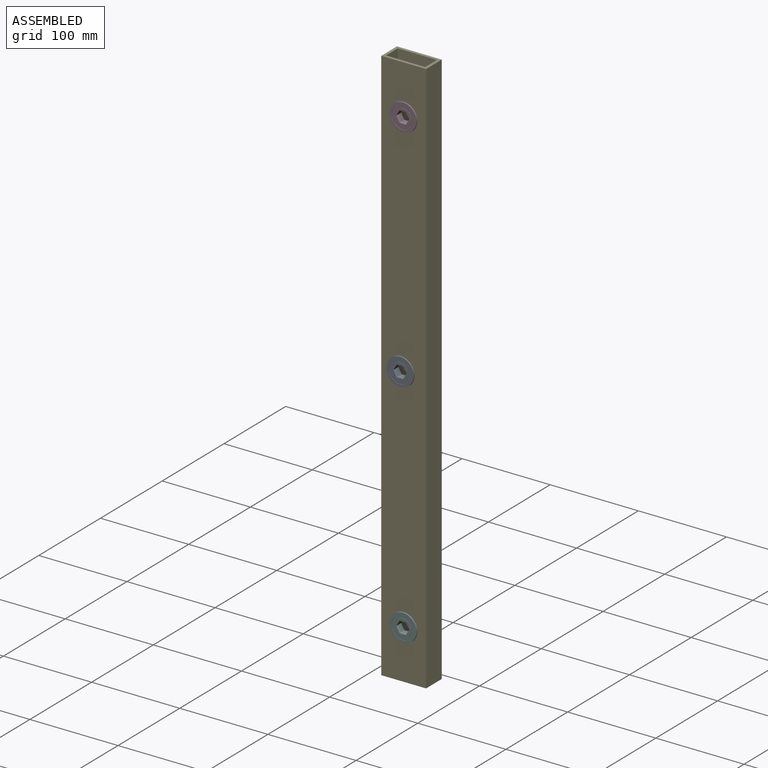
[diagram: assembled view]
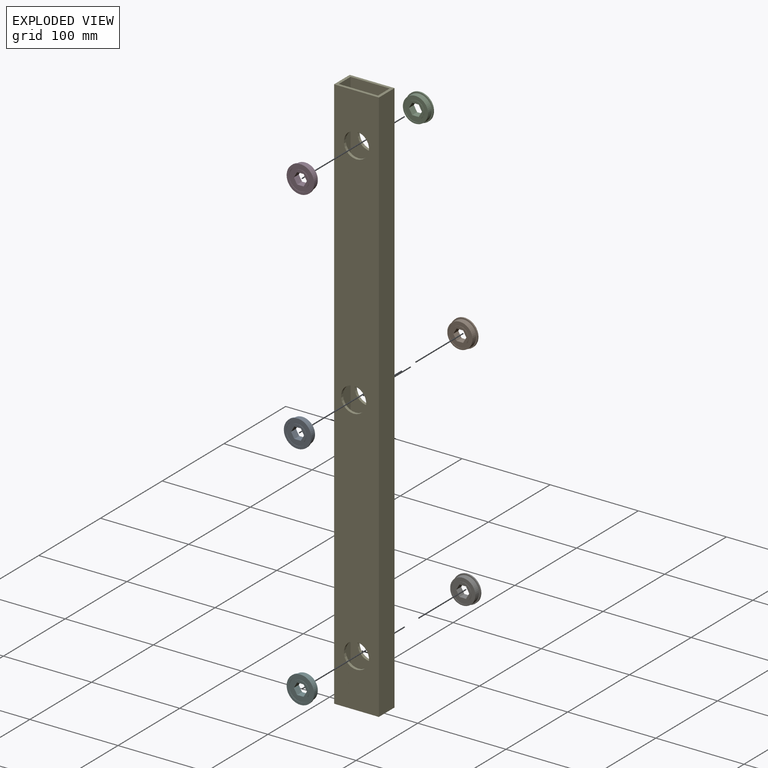
[diagram: exploded view]
GUIDED TOUR — MATED ASSEMBLY (Onshape document a4a15778484e21031797e188, AutoMate assembly a4a15778484e21031797e188_22e2bdbfeca04571f7c9a819_34fcf6a43a0e6a95f6afc652_default)

This assembly has 7 components, labeled P0..P6 below (a component is one placed occurrence of a part; the same part can appear more than once), held together by 12 mates. A mate is a constraint between two components; its type names the relative motion it leaves free:
  CYLINDRICAL — leaves both rotation about and translation along the listed axis free,
  PLANAR — leaves sliding in the plane through the listed point (normal = the listed direction) and rotation about that normal free.
Axis/direction vectors are unit vectors and 'through' points are millimeter coordinates, both in the assembly's world frame.

MATES
  1. CYLINDRICAL "Cylindrical 2": P6 <-> P4, axis (0.000, 1.000, 0.000) through (-51.10, -27.88, 42.93) mm
  2. PLANAR "Planar 4": P1 <-> P4, direction (0.000, -1.000, 0.000) through (-54.28, -24.46, 304.56) mm
  3. CYLINDRICAL "Cylindrical 5": P2 <-> P4, axis (0.000, -1.000, 0.000) through (-51.10, -30.81, 566.19) mm
  4. PLANAR "Planar 3": P1 <-> P4, direction (0.000, -1.000, 0.000) through (-54.28, -30.81, 304.56) mm
  5. PLANAR "Planar 8": P2 <-> P4, direction (0.000, -1.000, 0.000) through (-51.10, -24.46, 566.19) mm
  6. PLANAR "Planar 1": P3 <-> P4, direction (0.000, 1.000, 0.000) through (-51.10, -49.86, 566.19) mm
  7. CYLINDRICAL "Cylindrical 3": P0 <-> P4, axis (0.000, -1.000, 0.000) through (-54.28, -46.31, 304.56) mm
  8. PLANAR "Planar 7": P5 <-> P4, direction (0.000, 1.000, 0.000) through (-51.10, -49.86, 42.93) mm
  9. PLANAR "Planar 5": P0 <-> P4, direction (0.000, 1.000, 0.000) through (-54.28, -49.86, 304.56) mm
  10. PLANAR "Planar 2": P6 <-> P4, direction (0.000, 1.000, 0.000) through (-51.10, -24.46, 42.93) mm
  11. CYLINDRICAL "Cylindrical 4": P5 <-> P4, axis (0.000, -1.000, 0.000) through (-51.10, -43.51, 42.93) mm
  12. CYLINDRICAL "Cylindrical 1": P3 <-> P4, axis (0.000, -1.000, 0.000) through (-51.10, -46.31, 566.19) mm

ASSEMBLY ORDER
  1. P2 — the base component [order verified]
  2. P1 [order verified]
  3. P4 [order verified]
  4. P0 [order verified]
  5. P5 [order verified]
  6. P3 [order verified]
  7. P6 [order verified]
(P0, P3, P4, P5, P6 verified with a relaxed clearance tolerance: the source model stores slight part interference there.)
Order-tag legend:
  [order verified] — this step's position reverses a verified removal order: the component was checked to insert without passing through the ones already placed.

Of the 7 components, 1 carries the full construction recipe — the FeatureScript program that regenerates the part's solid from scratch; the rest are supplied as boundary geometry only.
Each toured component is shown spotlighted twice — in the assembled view, then in the exploded view, where a leader line traces a displaced component back to its assembled socket (saturated green if recipe-attached, orange if geometry-only; every other component desaturated gray) — followed by its recipe or geometry summary and the mates that hold it.
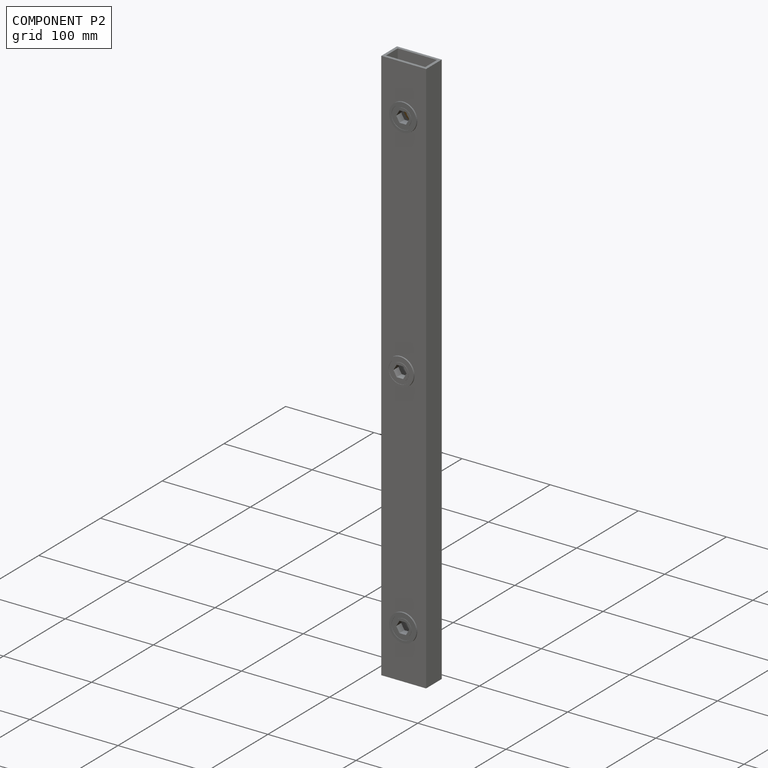
[diagram: component P2 — assembled]
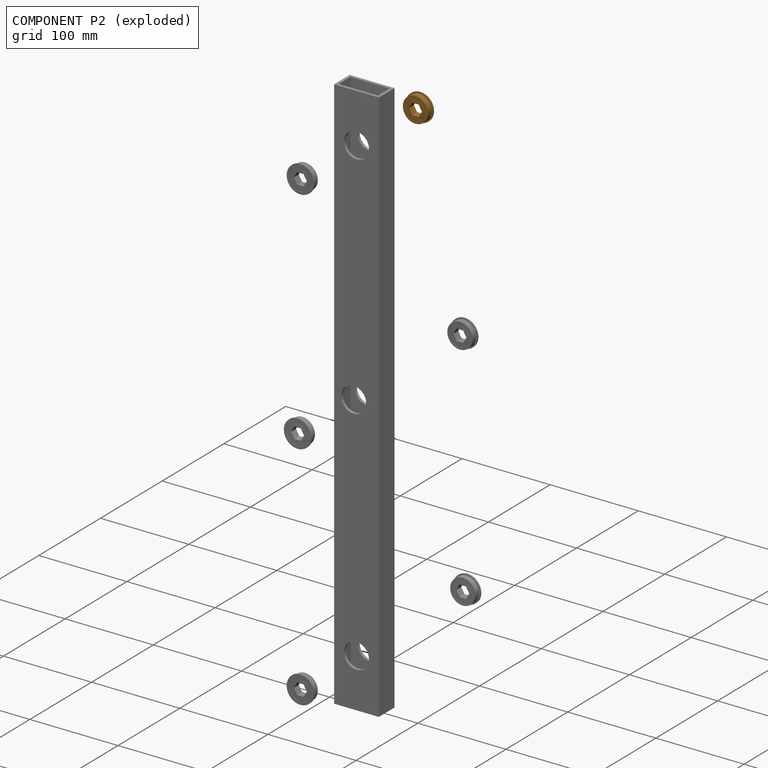
[diagram: component P2 — exploded]
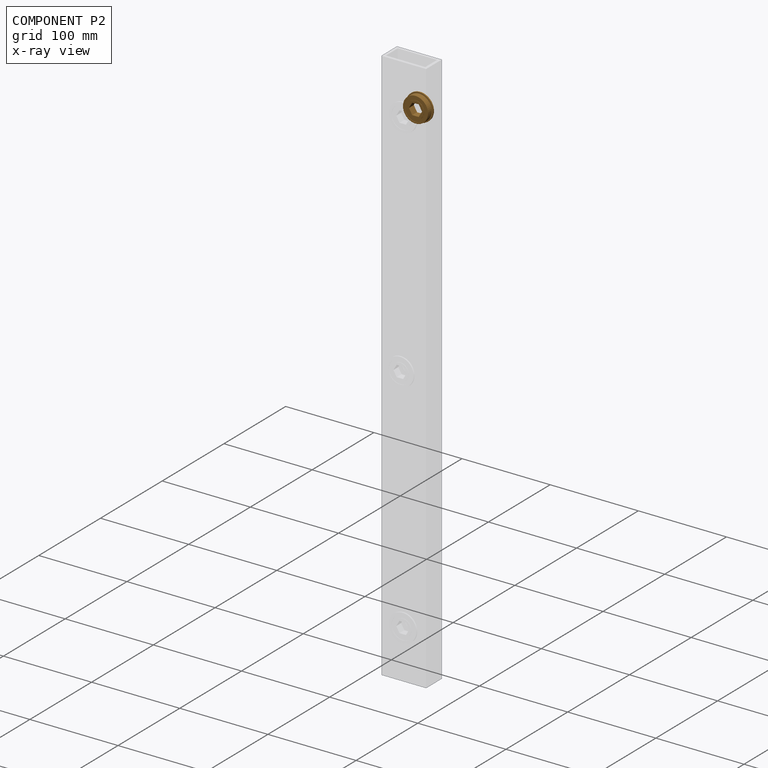
[diagram: component P2 — x-ray view]
COMPONENT P2 — geometry summary (no construction recipe available for this part):
  bounding box: 31.1 x 31.1 x 7.9 mm
  B-rep topology: 1 solid, 21 faces, 80 edges
  volume: 3986 mm^3 (52% of its bounding box)
  symmetry: 6-fold rotationally symmetric about the y axis; mirror-symmetric across its x mid-plane, z mid-plane
Held by: CYLINDRICAL mate "Cylindrical 5" to P4; PLANAR mate "Planar 8" to P4.
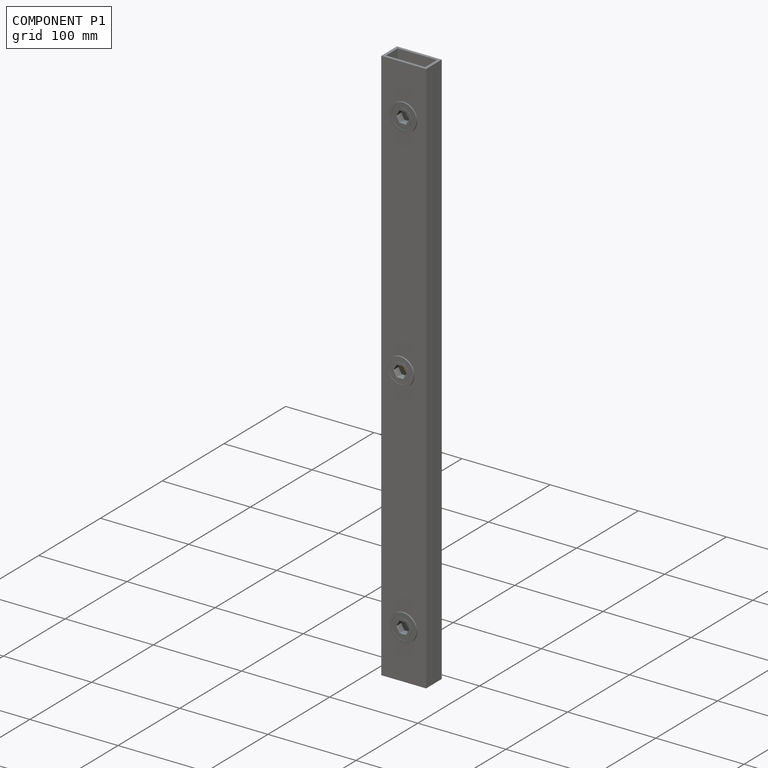
[diagram: component P1 — assembled]
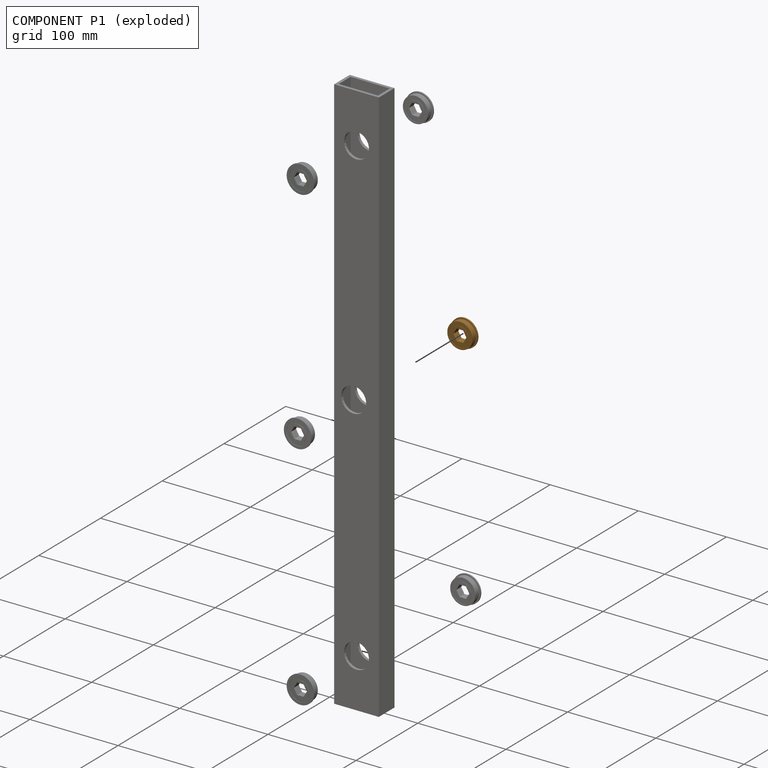
[diagram: component P1 — exploded]
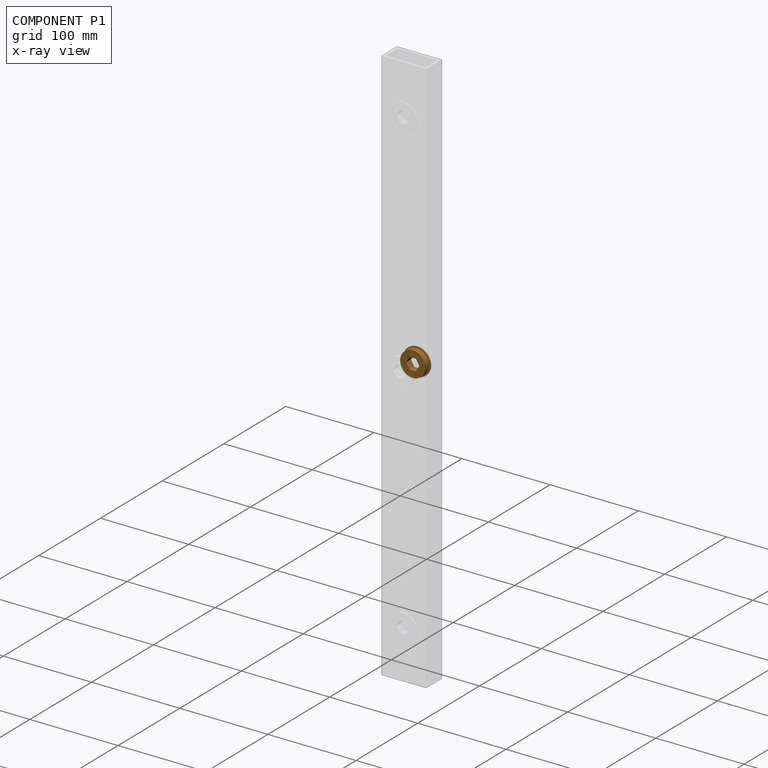
[diagram: component P1 — x-ray view]
COMPONENT P1 — geometry summary (no construction recipe available for this part):
  bounding box: 31.1 x 31.1 x 7.9 mm
  B-rep topology: 1 solid, 21 faces, 80 edges
  volume: 3986 mm^3 (52% of its bounding box)
  symmetry: 6-fold rotationally symmetric about the y axis; mirror-symmetric across its x mid-plane, z mid-plane
Held by: PLANAR mate "Planar 4" to P4; PLANAR mate "Planar 3" to P4.
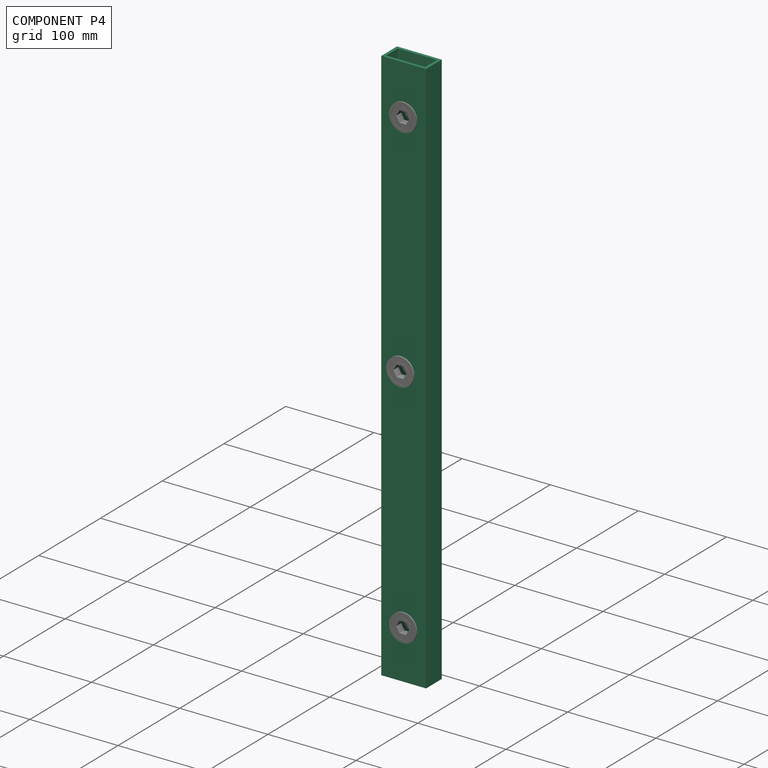
[diagram: component P4 — assembled]
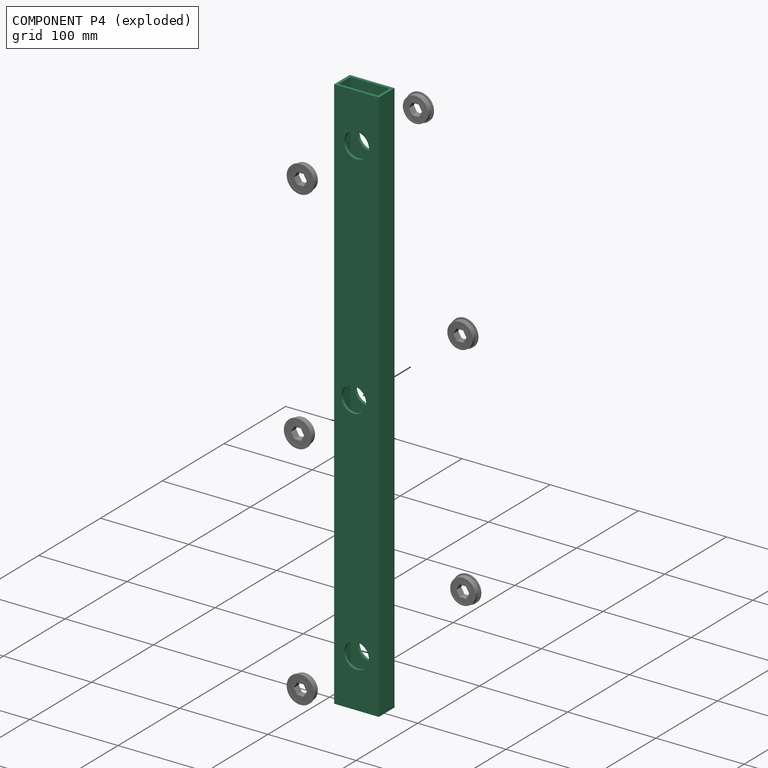
[diagram: component P4 — exploded]
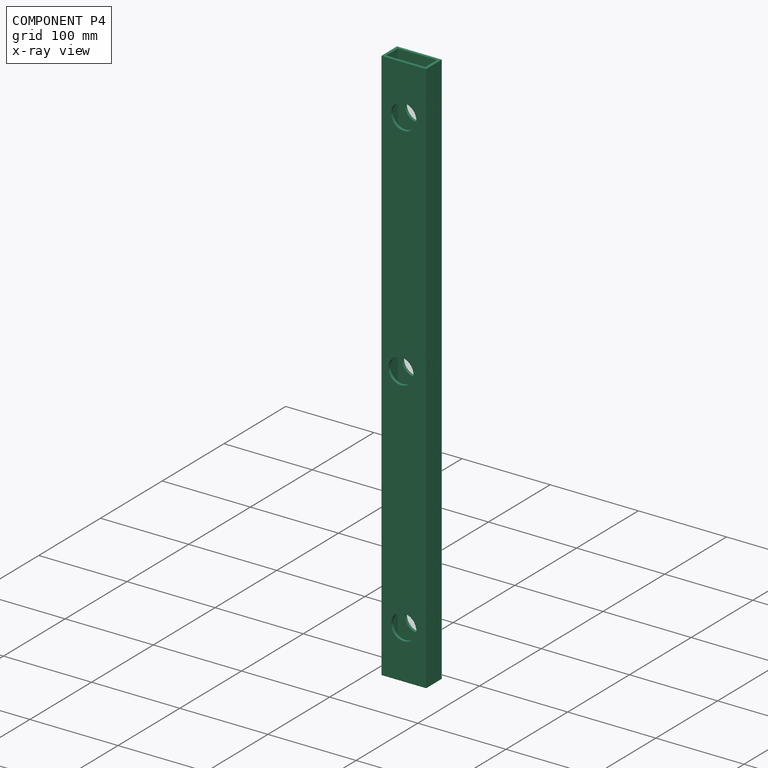
[diagram: component P4 — x-ray view]
COMPONENT P4 — recipe-attached (CADFS 00770564, mesh-verified: the recipe's output STEP matches this component's geometry to below the mesh-comparison resolution (tessellation chordal tolerance ~0.956 mm)).
Held by: CYLINDRICAL mate "Cylindrical 2" to P6; PLANAR mate "Planar 4" to P1; CYLINDRICAL mate "Cylindrical 5" to P2; PLANAR mate "Planar 3" to P1; PLANAR mate "Planar 8" to P2; PLANAR mate "Planar 1" to P3; CYLINDRICAL mate "Cylindrical 3" to P0; PLANAR mate "Planar 7" to P5; PLANAR mate "Planar 5" to P0; PLANAR mate "Planar 2" to P6; CYLINDRICAL mate "Cylindrical 4" to P5; CYLINDRICAL mate "Cylindrical 1" to P3.
Construction recipe (FeatureScript — the CAD program that rebuilds this solid; sketch coordinates are in the units given by the * unit suffixes, e.g. mm):

FeatureScript 1511;
import(path : "onshape/std/geometry.fs", version : "1511.0");
import(path : "onshape/std/common.fs", version : "1511.0");
const mm = millimeter;
const VERTEX = EntityType.VERTEX;
const EDGE = EntityType.EDGE;
const FACE = EntityType.FACE;
const BODY = EntityType.BODY;
function v(x, y){return vector(x, y);}
function OD(order){return orderDisambiguation(order);}
function OSD(set){return originalSetDisambiguation(set);}
function TD(topology){return topologyDisambiguation(topology);}
function TDD(query){return trueDependencyDisambiguation(query);}
function sQuery(a, b, c) {return sketchEntityQuery(a, b, c);}

annotation { "Feature Type Name" : "Feature", "Feature Type Description" : "" }
export const myFeature = defineFeature(function(context is Context, id is Id, definition is map)
    precondition{}
    {
        {
            var Q0;
            Q0=qCreatedBy(makeId("Top.planeOp"),FACE);
            var sketch = newSketch(context, id + "F0", { "sketchPlane" : qUnion([Q0])});
            skLineSegment(sketch, "E0", {"start": v(0, 0) * mm, "end": v(-50.8, 0) * mm});
            skLineSegment(sketch, "E1", {"start": v(-50.8, 0) * mm, "end": v(-50.8, -25.4) * mm});
            skLineSegment(sketch, "E2", {"start": v(-50.8, -25.4) * mm, "end": v(0, -25.4) * mm});
            skLineSegment(sketch, "E3", {"start": v(0, -25.4) * mm, "end": v(0, 0) * mm});
            skLineSegment(sketch, "E4.bottom", {"start": v(-3.18, -22.23) * mm, "end": v(-47.63, -22.23) * mm});
            skLineSegment(sketch, "E4.top", {"start": v(-3.18, -3.18) * mm, "end": v(-47.63, -3.18) * mm});
            skLineSegment(sketch, "E4.left", {"start": v(-3.18, -22.23) * mm, "end": v(-3.18, -3.17) * mm});
            skLineSegment(sketch, "E4.right", {"start": v(-47.63, -22.23) * mm, "end": v(-47.63, -3.18) * mm});
            skPoint(sketch, "E4.middle", {"position": v(-25.4, -12.7) * mm});
            skPoint(sketch, "E5.endSnap0", {"position": v(-25.4, -3.18) * mm});
            skLineSegment(sketch, "E6", {"start": v(-25.4, 0) * mm, "end": v(-25.4, -3.18) * mm, "construction": true});
            skLineSegment(sketch, "E7", {"start": v(-50.8, -12.7) * mm, "end": v(-47.63, -12.7) * mm, "construction": true});
            skSolve(sketch);
        }
        {
            var Q0;
            Q0 = qSketchRegion(id + "F0", true);
            extrude(context, id + "F1", {"entities" : qUnion([Q0]), "depth" : 635 * mm, "offsetDistance" : 25.4 * mm});
        }
        {
            var Q0;
            Q0=makeQuery(id+"F1.opExtrude","SWEPT_FACE",FACE,{"disambiguationData":[OSD([sQuery(id+"F0.wireOp",EDGE,"E0")])]});
            var sketch = newSketch(context, id + "F2", { "sketchPlane" : qUnion([Q0])});
            skLineSegment(sketch, "E8", {"start": v(25.4, 55.87) * mm, "end": v(28.58, 317.5) * mm, "construction": true});
            skLineSegment(sketch, "E9", {"start": v(28.58, 317.5) * mm, "end": v(25.4, 579.13) * mm, "construction": true});
            skLineSegment(sketch, "E10", {"start": v(25.4, 579.13) * mm, "end": v(25.4, 55.87) * mm, "construction": true});
            skLineSegment(sketch, "E11", {"start": v(25.4, 317.5) * mm, "end": v(0, 317.5) * mm, "construction": true});
            skCircle(sketch, "E12", {"center": v(25.4, 55.87) * mm, "radius": 14.29 * mm});
            skCircle(sketch, "E13", {"center": v(25.4, 579.13) * mm, "radius": 14.29 * mm});
            skCircle(sketch, "E14", {"center": v(28.58, 317.5) * mm, "radius": 14.29 * mm});
            skSolve(sketch);
        }
        {
            var Q0;
            Q0 = qSketchRegion(id + "F2", true);
            extrude(context, id + "F3", {"entities" : qUnion([Q0]), "operationType" : NewBodyOperationType.REMOVE, "endBound" : BoundingType.THROUGH_ALL, "oppositeDirection" : true, "depth" : 25.4 * mm, "offsetDistance" : 25.4 * mm});
        }
    });
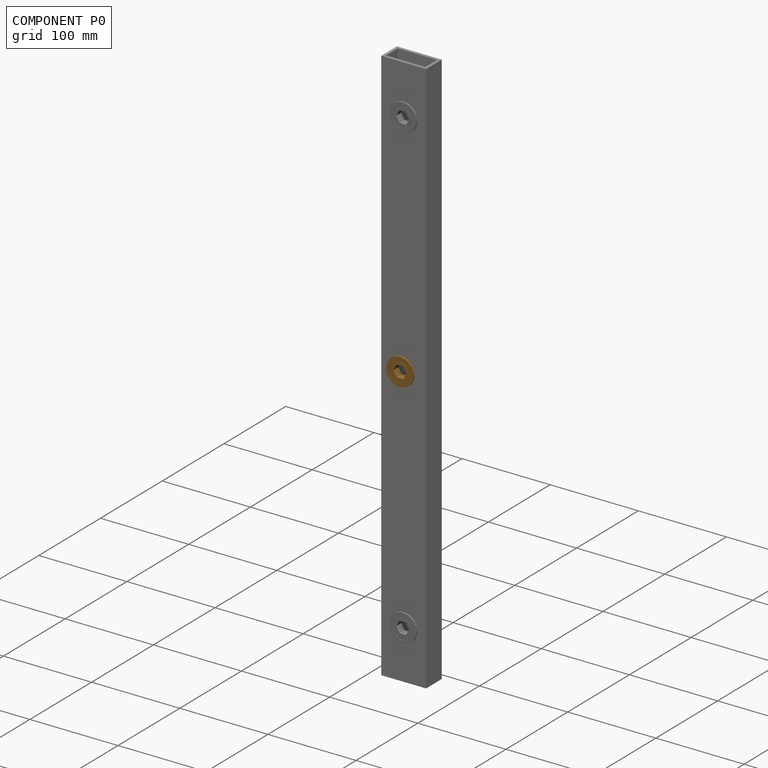
[diagram: component P0 — assembled]
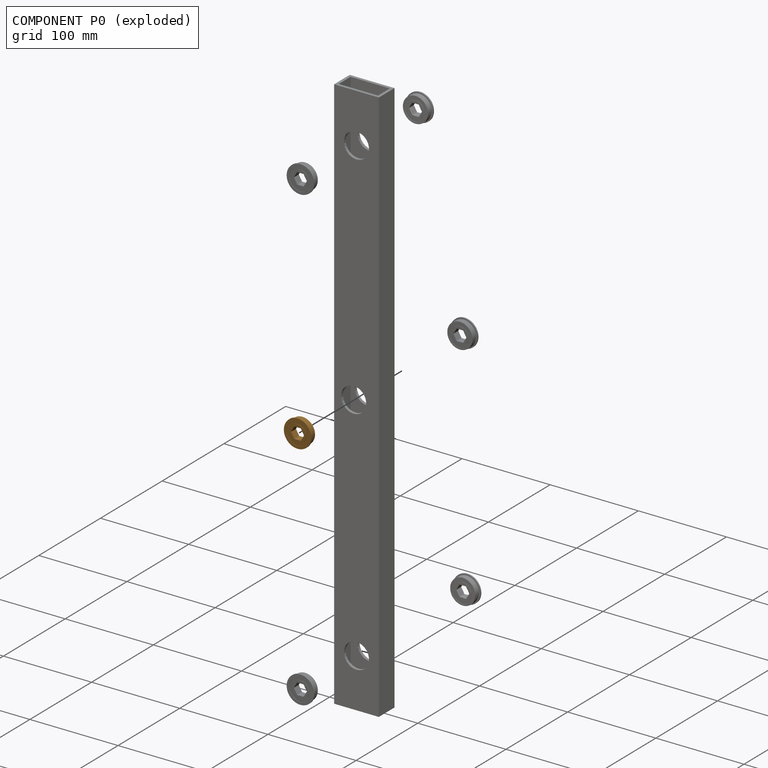
[diagram: component P0 — exploded]
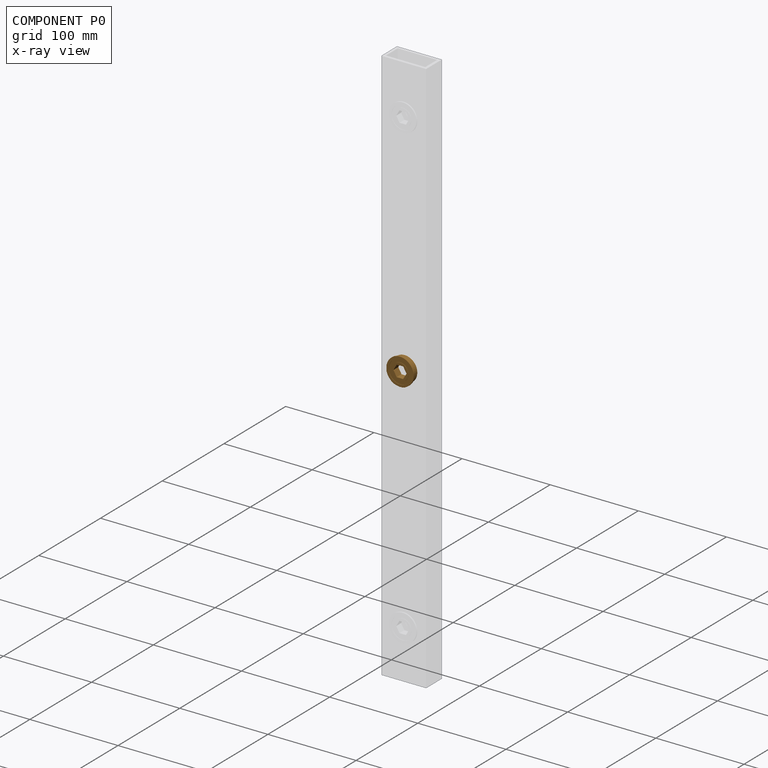
[diagram: component P0 — x-ray view]
COMPONENT P0 — geometry summary (no construction recipe available for this part):
  bounding box: 31.1 x 31.1 x 7.9 mm
  B-rep topology: 1 solid, 21 faces, 80 edges
  volume: 3986 mm^3 (52% of its bounding box)
  symmetry: 6-fold rotationally symmetric about the y axis; mirror-symmetric across its x mid-plane, z mid-plane
Held by: CYLINDRICAL mate "Cylindrical 3" to P4; PLANAR mate "Planar 5" to P4.
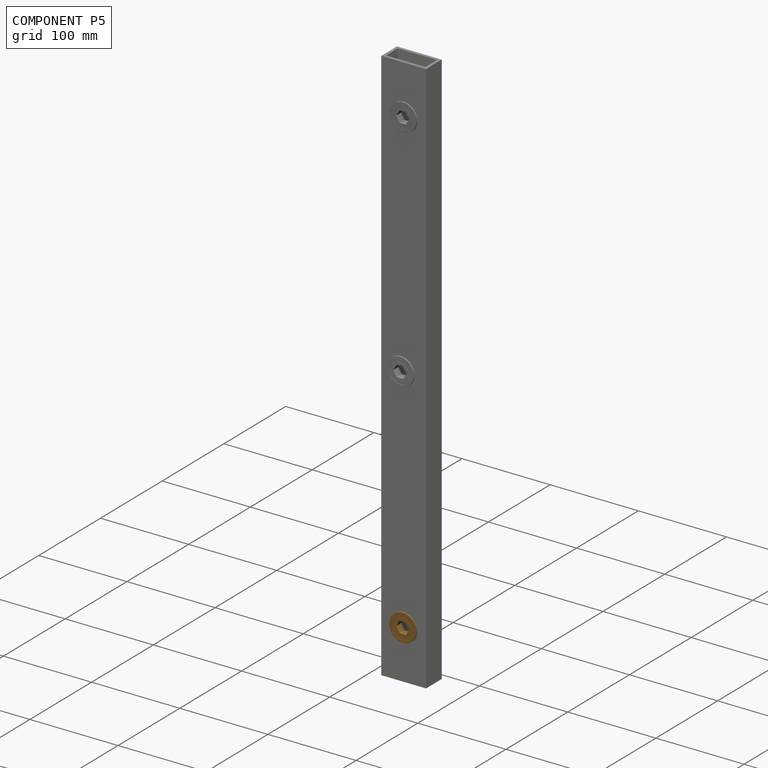
[diagram: component P5 — assembled]
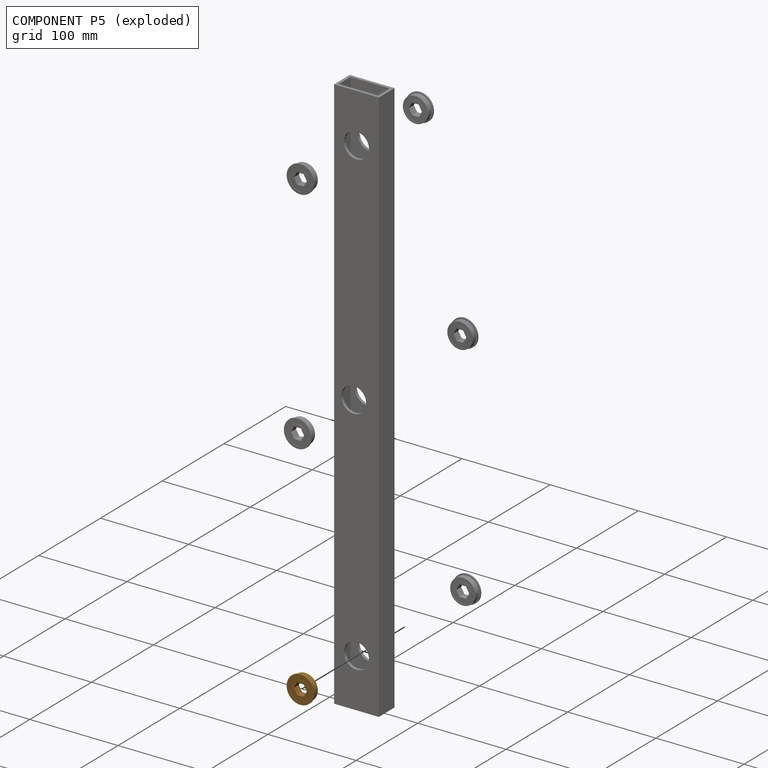
[diagram: component P5 — exploded]
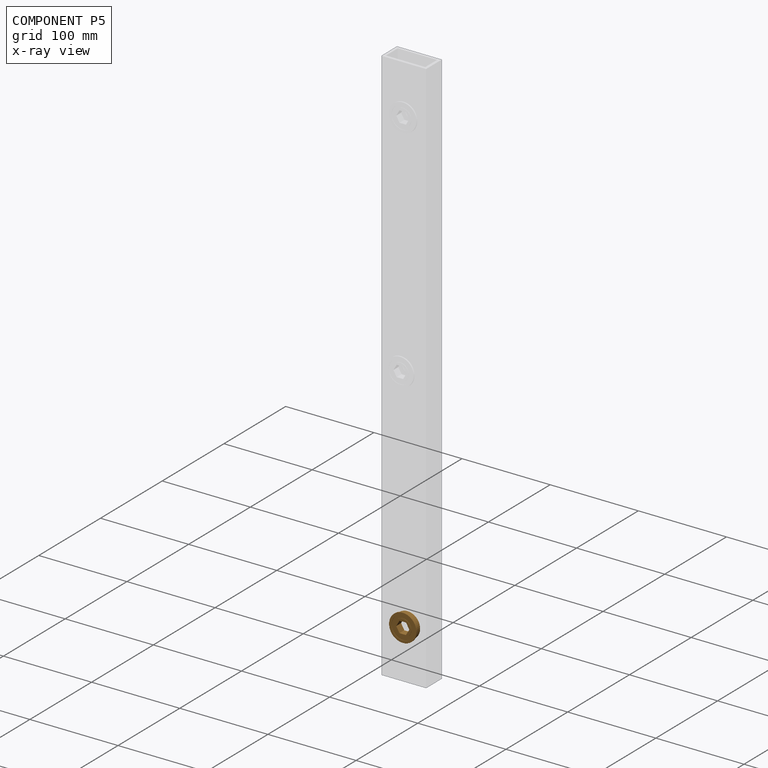
[diagram: component P5 — x-ray view]
COMPONENT P5 — geometry summary (no construction recipe available for this part):
  bounding box: 31.1 x 31.1 x 7.9 mm
  B-rep topology: 1 solid, 21 faces, 80 edges
  volume: 3986 mm^3 (52% of its bounding box)
  symmetry: 6-fold rotationally symmetric about the y axis; mirror-symmetric across its x mid-plane, z mid-plane
Held by: PLANAR mate "Planar 7" to P4; CYLINDRICAL mate "Cylindrical 4" to P4.
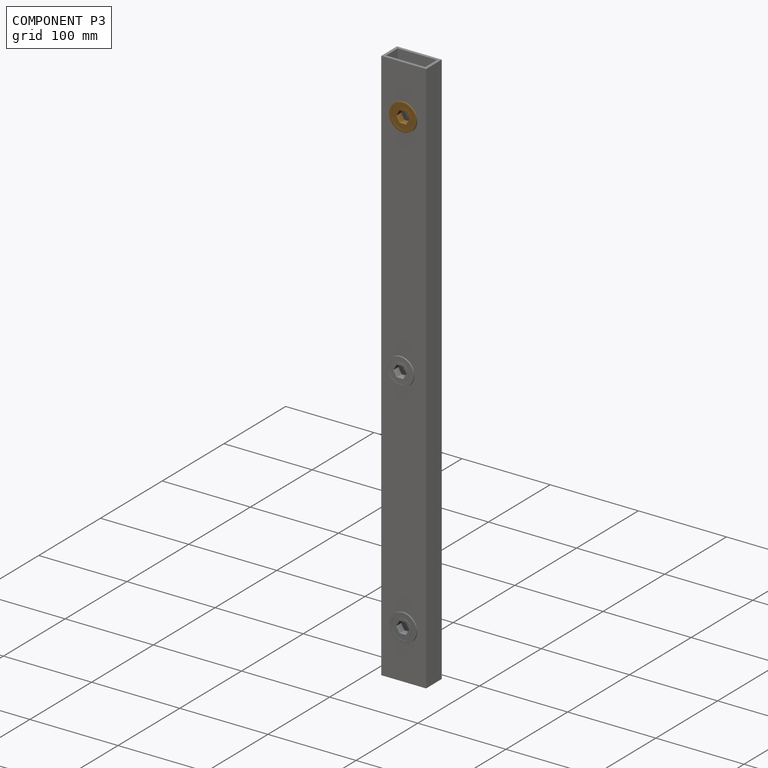
[diagram: component P3 — assembled]
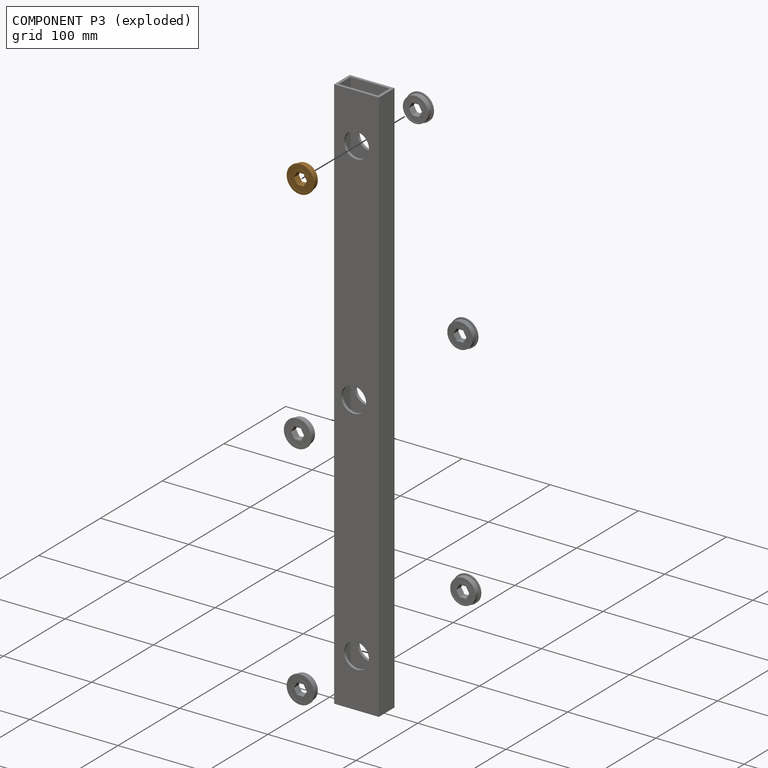
[diagram: component P3 — exploded]
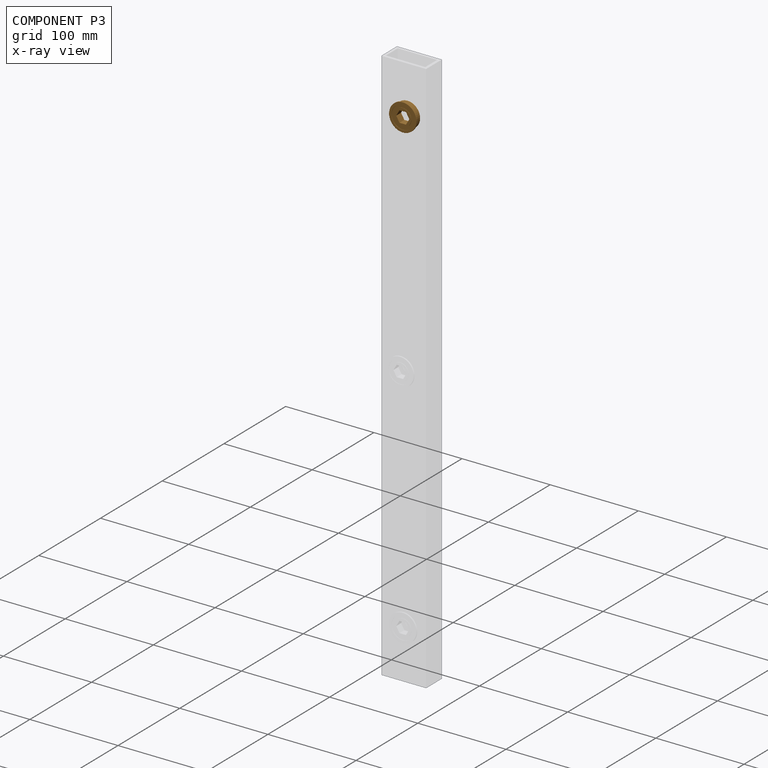
[diagram: component P3 — x-ray view]
COMPONENT P3 — geometry summary (no construction recipe available for this part):
  bounding box: 31.1 x 31.1 x 7.9 mm
  B-rep topology: 1 solid, 21 faces, 80 edges
  volume: 3986 mm^3 (52% of its bounding box)
  symmetry: 6-fold rotationally symmetric about the y axis; mirror-symmetric across its x mid-plane, z mid-plane
Held by: PLANAR mate "Planar 1" to P4; CYLINDRICAL mate "Cylindrical 1" to P4.
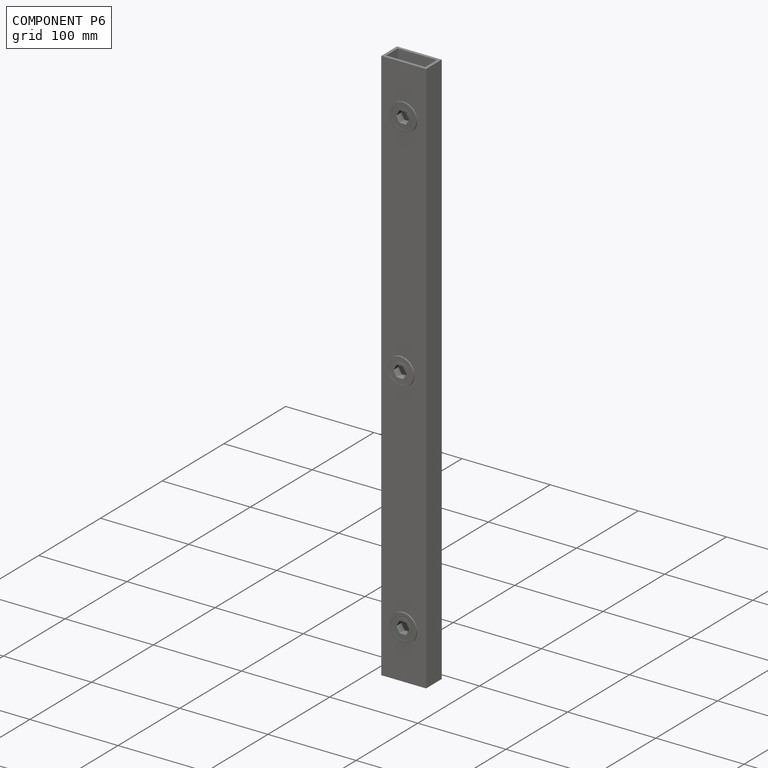
[diagram: component P6 — assembled]
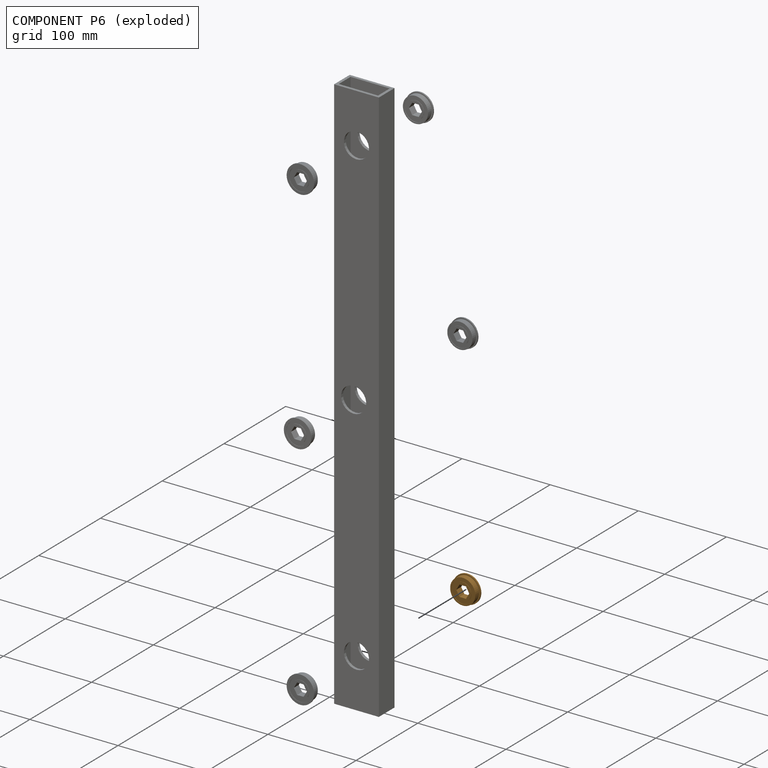
[diagram: component P6 — exploded]
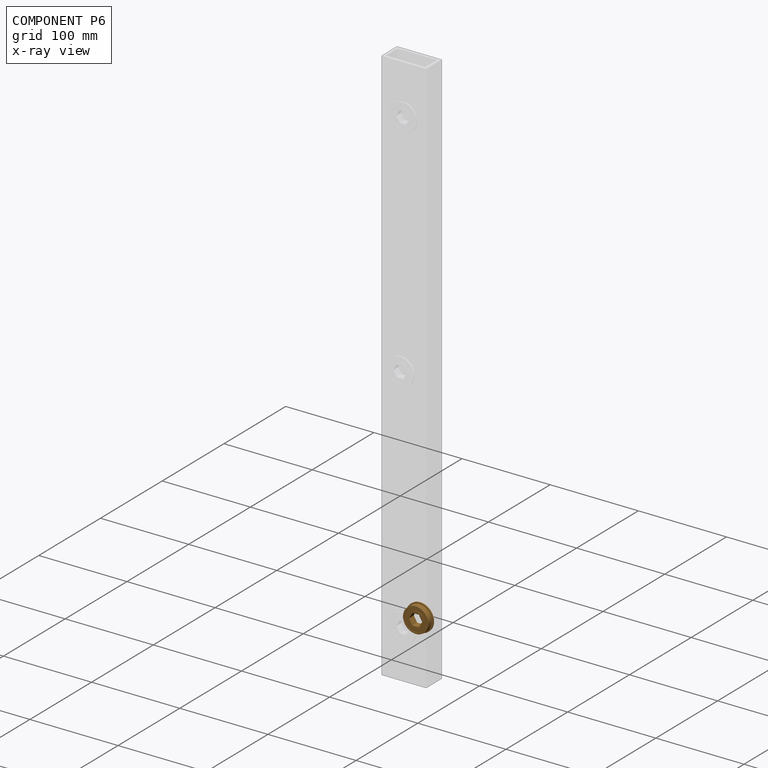
[diagram: component P6 — x-ray view]
COMPONENT P6 — geometry summary (no construction recipe available for this part):
  bounding box: 31.1 x 31.1 x 7.9 mm
  B-rep topology: 1 solid, 21 faces, 80 edges
  volume: 3986 mm^3 (52% of its bounding box)
  symmetry: 6-fold rotationally symmetric about the y axis; mirror-symmetric across its x mid-plane, z mid-plane
Held by: CYLINDRICAL mate "Cylindrical 2" to P4; PLANAR mate "Planar 2" to P4.
PROVENANCE & LICENSES
Assembly (occurrences, transforms, mates, per-part STEP geometry): AutoMate dataset, Zenodo record 7776208, CC0.
Construction recipes: CADFS (HuggingFace VladPyatov/CADFS, CC-BY-4.0, layered over the ABC dataset), FeatureScript reconstruction programs keyed by ABC model id.
Join: ABC meta listings map ABC model id -> Onshape documentId; within a shared document, parts are matched by geometric signature (bounding-box dims + volume at 0.1% relative tolerance, exact B-rep face/solid counts).
Verification: 1 of this assembly's 7 components carries a recipe attachment, and every attachment is mesh-verified: the CADFS STEP and the AutoMate member STEP were compared as meshes in their shared local frame (symmetric sampled-point-to-mesh distance); worst across the 1 attachment: below the mesh-comparison resolution (tessellation chordal tolerance ~0.956 mm) on a 638 mm part.
Renders: orthographic iso camera (az 35 / el 25); the floor grid conveys scale (grid pitch printed in each image; no ruler). In the exploded view each component is displaced by its stored offset vector: the offsets alone carry the explosion direction (mate normal/axis signs are not orientation cues and do not encode it), and separation distances are assigned per mate-chain, not proportionally to assembly-order depth.
